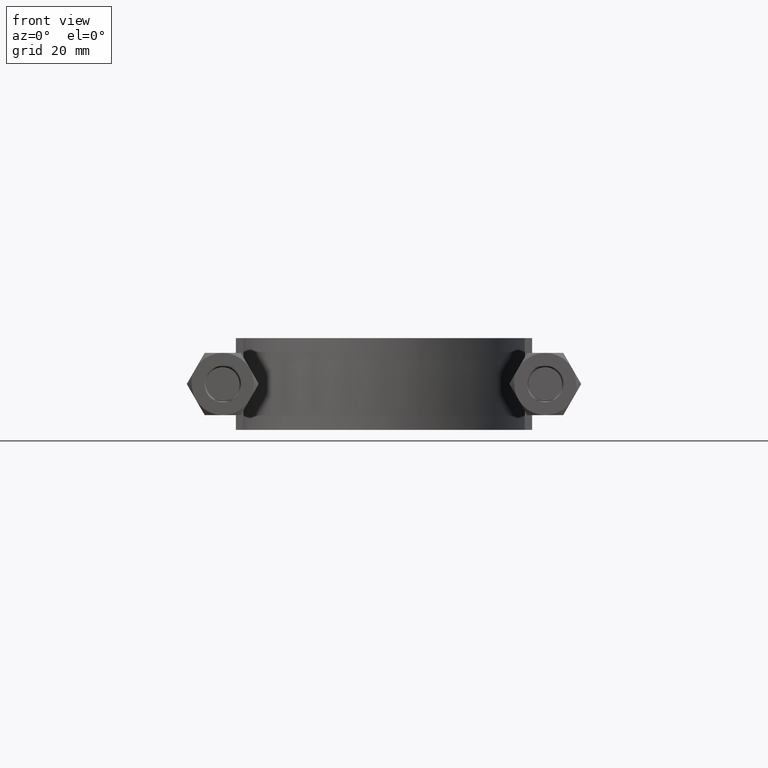
[diagram: clean part render]
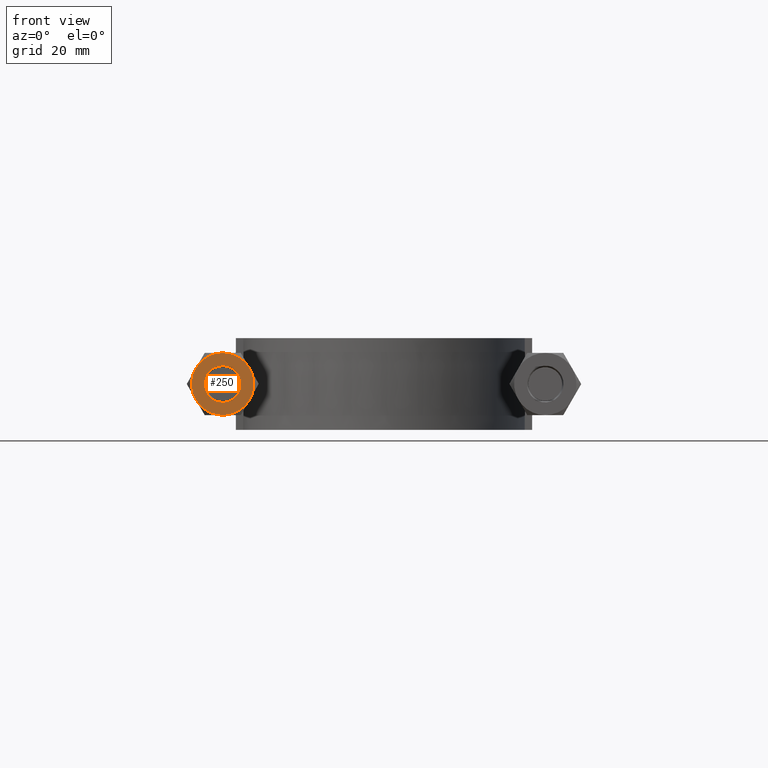
[diagram: same view with one face highlighted and labeled with its STEP entity id]
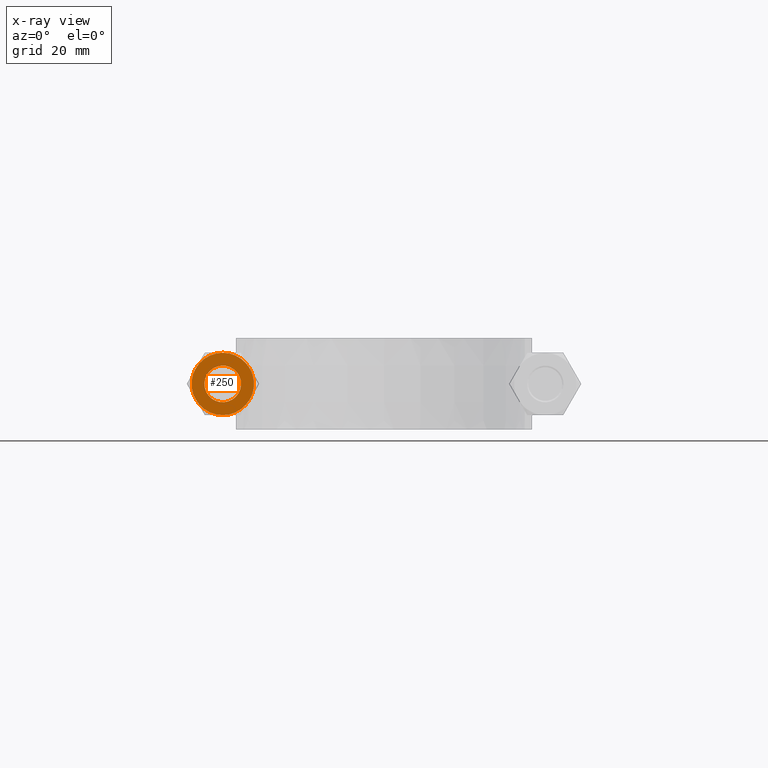
[diagram: x-ray of the same camera — body ghosted, the highlighted face saturated]
A machine part, front view. The second image highlights one B-rep face of the part: STEP entity #250.
The next image is the same camera in x-ray: the body ghosted, the highlighted face saturated — about 0% of this face is hidden behind the body in this view.
In plain terms, the highlighted planar face has unit normal (0, 1, 0).
Its self-contained STEP definition (entity closure, byte-faithful):
#250 = ADVANCED_FACE( '', ( #368, #369 ), #370, .F. );
#368 = FACE_OUTER_BOUND( '', #1365, .T. );
#369 = FACE_BOUND( '', #1366, .T. );
#370 = PLANE( '', #1367 );
#1365 = EDGE_LOOP( '', ( #1664, #1665, #1666, #1667, #1668, #1669 ) );
#1366 = EDGE_LOOP( '', ( #1670 ) );
#1367 = AXIS2_PLACEMENT_3D( '', #1671, #1672, #1673 );
#1664 = ORIENTED_EDGE( '', *, *, #2055, .F. );
#1665 = ORIENTED_EDGE( '', *, *, #2056, .F. );
#1666 = ORIENTED_EDGE( '', *, *, #2057, .F. );
#1667 = ORIENTED_EDGE( '', *, *, #2058, .F. );
#1668 = ORIENTED_EDGE( '', *, *, #2053, .F. );
#1669 = ORIENTED_EDGE( '', *, *, #2059, .F. );
#1670 = ORIENTED_EDGE( '', *, *, #2060, .T. );
#1671 = CARTESIAN_POINT( '', ( -44.0000000000000, 20.0000000000000, 1.48980220521233E-015 ) );
#1672 = DIRECTION( '', ( 2.44921270764475E-016, 1.00000000000000, 6.12303176911189E-017 ) );
#1673 = DIRECTION( '', ( -0.866025403784439, 1.81492883563643E-016, 0.500000000000000 ) );
#2053 = EDGE_CURVE( '', #2236, #2238, #2239, .T. );
#2055 = EDGE_CURVE( '', #2241, #2242, #2243, .T. );
#2056 = EDGE_CURVE( '', #2244, #2241, #2245, .T. );
#2057 = EDGE_CURVE( '', #2246, #2244, #2247, .T. );
#2058 = EDGE_CURVE( '', #2238, #2246, #2248, .T. );
#2059 = EDGE_CURVE( '', #2242, #2236, #2249, .T. );
#2060 = EDGE_CURVE( '', #2250, #2250, #2251, .T. );
#2236 = VERTEX_POINT( '', #2745 );
#2238 = VERTEX_POINT( '', #2752 );
#2239 = CIRCLE( '', #2753, 8.50000000000000 );
#2241 = VERTEX_POINT( '', #2762 );
#2242 = VERTEX_POINT( '', #2763 );
#2243 = CIRCLE( '', #2764, 8.50000000000000 );
#2244 = VERTEX_POINT( '', #2765 );
#2245 = CIRCLE( '', #2766, 8.50000000000000 );
#2246 = VERTEX_POINT( '', #2767 );
#2247 = CIRCLE( '', #2768, 8.50000000000000 );
#2248 = CIRCLE( '', #2769, 8.50000000000000 );
#2249 = CIRCLE( '', #2770, 8.50000000000000 );
#2250 = VERTEX_POINT( '', #2771 );
#2251 = CIRCLE( '', #2772, 5.00000000000000 );
#2745 = CARTESIAN_POINT( '', ( -36.6387840678323, 20.0000000000000, -4.25000000000000 ) );
#2752 = CARTESIAN_POINT( '', ( -44.0000000000000, 20.0000000000000, -8.50000000000000 ) );
#2753 = AXIS2_PLACEMENT_3D( '', #3155, #3156, #3157 );
#2762 = CARTESIAN_POINT( '', ( -44.0000000000000, 20.0000000000000, 8.50000000000000 ) );
#2763 = CARTESIAN_POINT( '', ( -36.6387840678323, 20.0000000000000, 4.25000000000000 ) );
#2764 = AXIS2_PLACEMENT_3D( '', #3158, #3159, #3160 );
#2765 = CARTESIAN_POINT( '', ( -51.3612159321677, 20.0000000000000, 4.25000000000000 ) );
#2766 = AXIS2_PLACEMENT_3D( '', #3161, #3162, #3163 );
#2767 = CARTESIAN_POINT( '', ( -51.3612159321677, 20.0000000000000, -4.25000000000000 ) );
#2768 = AXIS2_PLACEMENT_3D( '', #3164, #3165, #3166 );
#2769 = AXIS2_PLACEMENT_3D( '', #3167, #3168, #3169 );
#2770 = AXIS2_PLACEMENT_3D( '', #3170, #3171, #3172 );
#2771 = CARTESIAN_POINT( '', ( -48.3301270189222, 20.0000000000000, 2.50000000000000 ) );
#2772 = AXIS2_PLACEMENT_3D( '', #3173, #3174, #3175 );
#3155 = CARTESIAN_POINT( '', ( -44.0000000000000, 20.0000000000000, 1.48980220521233E-015 ) );
#3156 = DIRECTION( '', ( 2.44921270764476E-016, 1.00000000000000, 6.12303176911189E-017 ) );
#3157 = DIRECTION( '', ( -0.866025403784439, 1.81492883563643E-016, 0.500000000000000 ) );
#3158 = CARTESIAN_POINT( '', ( -44.0000000000000, 20.0000000000000, 1.48980220521233E-015 ) );
#3159 = DIRECTION( '', ( 2.44921270764476E-016, 1.00000000000000, 6.12303176911189E-017 ) );
#3160 = DIRECTION( '', ( -0.866025403784439, 1.81492883563643E-016, 0.500000000000000 ) );
#3161 = CARTESIAN_POINT( '', ( -44.0000000000000, 20.0000000000000, 1.48980220521233E-015 ) );
#3162 = DIRECTION( '', ( 2.44921270764476E-016, 1.00000000000000, 6.12303176911189E-017 ) );
#3163 = DIRECTION( '', ( -0.866025403784439, 1.81492883563643E-016, 0.500000000000000 ) );
#3164 = CARTESIAN_POINT( '', ( -44.0000000000000, 20.0000000000000, 1.48980220521233E-015 ) );
#3165 = DIRECTION( '', ( 2.44921270764476E-016, 1.00000000000000, 6.12303176911189E-017 ) );
#3166 = DIRECTION( '', ( -0.866025403784439, 1.81492883563643E-016, 0.500000000000000 ) );
#3167 = CARTESIAN_POINT( '', ( -44.0000000000000, 20.0000000000000, 1.48980220521233E-015 ) );
#3168 = DIRECTION( '', ( 2.44921270764476E-016, 1.00000000000000, 6.12303176911189E-017 ) );
#3169 = DIRECTION( '', ( -0.866025403784439, 1.81492883563643E-016, 0.500000000000000 ) );
#3170 = CARTESIAN_POINT( '', ( -44.0000000000000, 20.0000000000000, 1.48980220521233E-015 ) );
#3171 = DIRECTION( '', ( 2.44921270764476E-016, 1.00000000000000, 6.12303176911189E-017 ) );
#3172 = DIRECTION( '', ( -0.866025403784439, 1.81492883563643E-016, 0.500000000000000 ) );
#3173 = CARTESIAN_POINT( '', ( -44.0000000000000, 20.0000000000000, 1.48980220521233E-015 ) );
#3174 = DIRECTION( '', ( 2.44921270764475E-016, 1.00000000000000, 6.12303176911189E-017 ) );
#3175 = DIRECTION( '', ( -0.866025403784439, 1.81492883563643E-016, 0.500000000000000 ) );